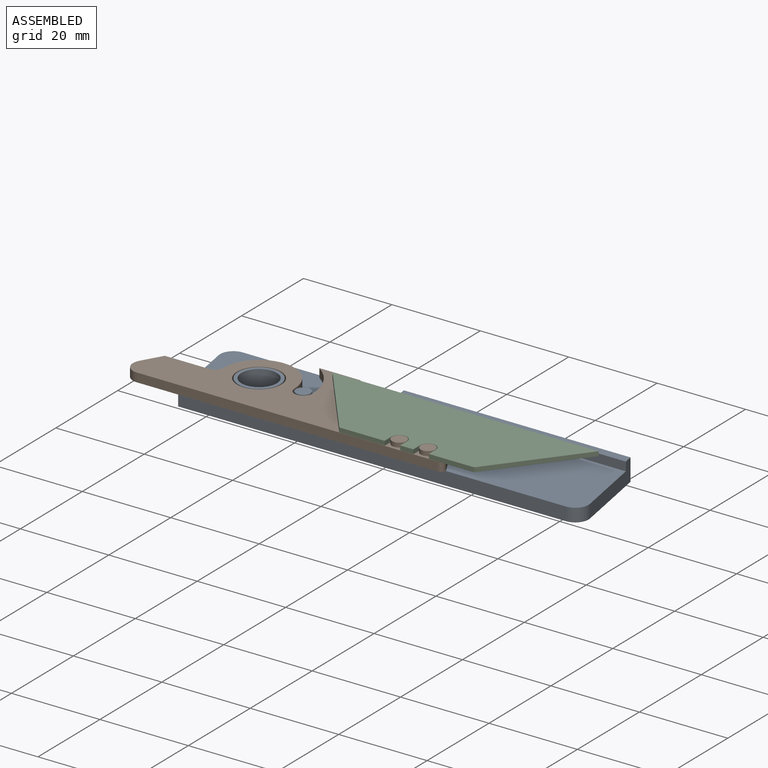
[diagram: assembled view]
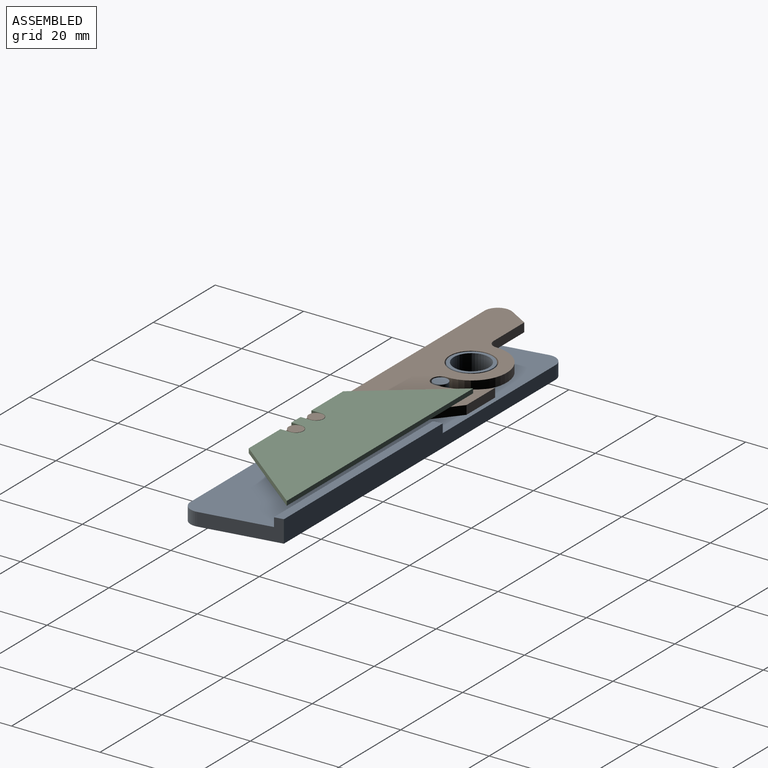
[diagram: assembled view, second angle]
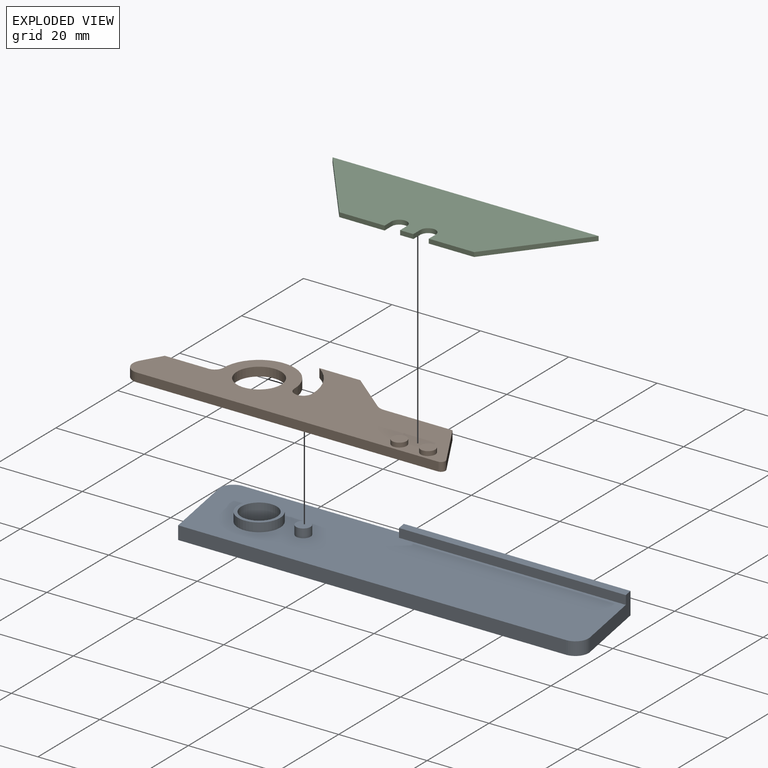
[diagram: exploded view]
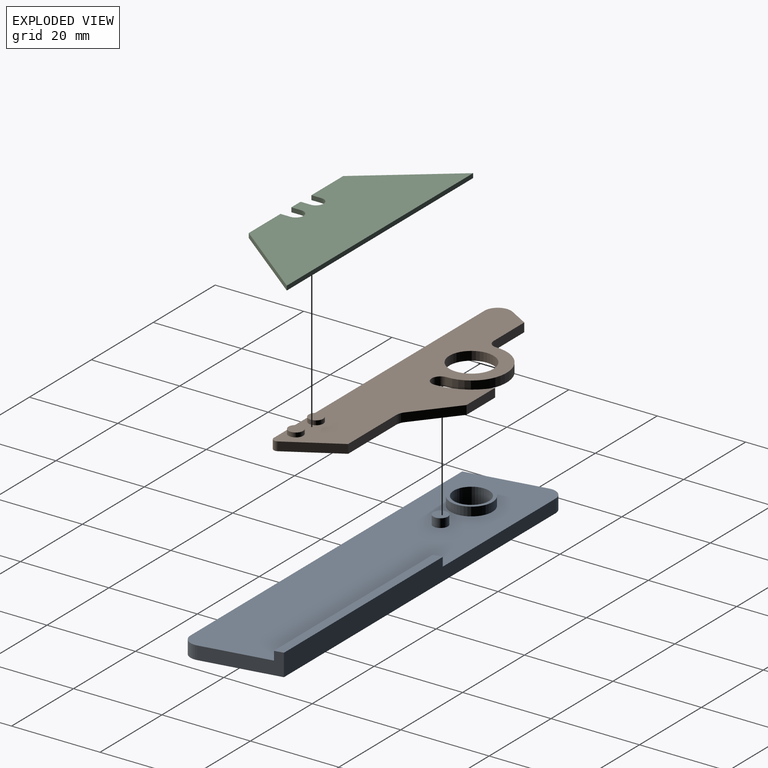
[diagram: exploded view, second angle]
ASSEMBLY  parts=3 mates=2
PART A: 16 faces, bbox 93.8x21x5 mm
  f0: plane 93.85x21mm, normal (0,0,1), area 1729.5mm2, adj f1,f2,f3,f4,f6,f7,f10,f12
  f1: plane 17.48x3.08mm, normal (-0.98,-0.17,0), area 53.2mm2, adj f0,f2,f5,f15
  f2: plane 87.72x3mm, normal (0,-1,0), area 263.2mm2, adj f0,f1,f5,f14
  f3: plane 17.48x5mm, normal (0.98,0.17,0), area 57.3mm2, adj f0,f4,f5,f7,f8,f14
  f4: plane 87.72x5mm, normal (0,1,0), area 365.8mm2, adj f0,f3,f5,f6,f8,f15
  f5: plane 93.85x21mm, normal (0,0,-1), area 1861.2mm2, adj f1,f2,f3,f4,f9,f14,f15
  f6: plane 2x2mm, normal (-0.98,-0.17,0), area 4.1mm2, adj f0,f4,f7,f8
  f7: plane 51.3x2mm, normal (0,-1,0), area 102.6mm2, adj f0,f3,f6,f8
  f8: plane 51.65x2mm, normal (0,0,1), area 102.6mm2, adj f3,f4,f6,f7
  f9: cylinder r=4mm len=8mm, axis (0,0,-1), area 125.7mm2, adj f5,f11
  f10: cylinder r=4.75mm len=9.5mm, axis (0,0,-1), area 59.7mm2, adj f0,f11
  f11: plane 9.5x9.5mm, normal (0,0,1), area 20.6mm2, adj f9,f10
  f12: cylinder r=1.65mm len=3.3mm, axis (0,0,-1), area 20.7mm2, adj f0,f13
  f13: plane 3.3x3.3mm, normal (0,0,1), area 8.6mm2, adj f12
  f14: cylinder r=3mm len=3.52mm, axis (0,0,1), area 15.7mm2, adj f0,f2,f3,f5
  f15: cylinder r=3mm len=3.52mm, axis (0,0,1), area 15.7mm2, adj f0,f1,f4,f5
PART B: 21 faces, bbox 72.1x21x3 mm
  f0: cylinder r=3mm len=2mm, axis (0,0,-1), area 4.1mm2, adj f1,f14,f15,f16
  f1: plane 9.17x7.48mm, normal (-0.63,-0.77,0), area 23.7mm2, adj f0,f2,f15,f16
  f2: plane 9.24x2mm, normal (0,-1,0), area 18.5mm2, adj f1,f3,f15,f16
  f3: cylinder r=12mm len=10mm, axis (0,0,-1), area 23.6mm2, adj f2,f4,f15,f16
  f4: cylinder r=2mm len=4mm, axis (0,0,-1), area 12.6mm2, adj f3,f5,f15,f16
  f5: cylinder r=8mm len=16mm, axis (0,0,-1), area 50.3mm2, adj f4,f6,f15,f16
  f6: cylinder r=2mm len=2mm, axis (0,0,-1), area 6.3mm2, adj f5,f7,f15,f16
  f7: plane 9.93x2mm, normal (0,-1,0), area 19.9mm2, adj f6,f8,f15,f16
  f8: plane 4.5x2.6mm, normal (0.87,-0.5,0), area 10.4mm2, adj f7,f9,f15,f16
  f9: cylinder r=3mm len=4.5mm, axis (0,0,-1), area 12.6mm2, adj f8,f10,f15,f16
  f10: plane 68.07x2mm, normal (0,1,0), area 136.1mm2, adj f9,f11,f15,f16
  f11: cylinder r=1mm len=2mm, axis (0,0,-1), area 4.2mm2, adj f10,f12,f15,f16
  f12: plane 11.34x6.55mm, normal (-0.87,-0.5,0), area 26.2mm2, adj f11,f14,f15,f16
  f13: cylinder r=5mm len=10mm, axis (0,0,-1), area 62.8mm2, adj f15,f16
  f14: plane 15.52x2mm, normal (0,-1,0), area 31mm2, adj f0,f12,f15,f16
  f15: plane 72.07x21mm, normal (0,0,1), area 870.5mm2, adj f0,f1,f2,f3,f4,f5,f6,f7
  f16: plane 72.07x21mm, normal (0,0,-1), area 887.6mm2, adj f0,f1,f2,f3,f4,f5,f6,f7
  f17: cylinder r=1.65mm len=3.3mm, axis (0,0,-1), area 10.4mm2, adj f15,f18
  f18: plane 3.3x3.3mm, normal (0,0,1), area 8.6mm2, adj f17
  f19: cylinder r=1.65mm len=3.3mm, axis (0,0,-1), area 10.4mm2, adj f15,f20
  f20: plane 3.3x3.3mm, normal (0,0,1), area 8.6mm2, adj f19
PART C: 14 faces, bbox 60.2x19x1 mm
  f0: plane 3x1mm, normal (0,1,0), area 3mm2, adj f1,f11,f12,f13
  f1: plane 2.25x1mm, normal (-1,0,0), area 2.2mm2, adj f0,f2,f12,f13
  f2: cylinder r=1.75mm len=3.5mm, axis (0,0,-1), area 5.5mm2, adj f1,f3,f12,f13
  f3: plane 2.25x1mm, normal (1,0,0), area 2.2mm2, adj f2,f4,f12,f13
  f4: plane 10.26x1mm, normal (0,1,0), area 10.3mm2, adj f3,f5,f12,f13
  f5: plane 19x14.84mm, normal (-0.79,0.62,0), area 24.1mm2, adj f4,f6,f12,f13
  f6: plane 60.2x1mm, normal (0,-1,0), area 60.2mm2, adj f5,f7,f12,f13
  f7: plane 19x14.84mm, normal (0.79,0.62,0), area 24.1mm2, adj f6,f8,f12,f13
  f8: plane 10.26x1mm, normal (0,1,0), area 10.3mm2, adj f7,f9,f12,f13
  f9: plane 2.25x1mm, normal (-1,0,0), area 2.2mm2, adj f8,f10,f12,f13
  f10: cylinder r=1.75mm len=3.5mm, axis (0,0,-1), area 5.5mm2, adj f9,f11,f12,f13
  f11: plane 2.25x1mm, normal (1,0,0), area 2.2mm2, adj f0,f10,f12,f13
  f12: plane 60.2x19mm, normal (0,0,1), area 836.4mm2, adj f0,f1,f2,f3,f4,f5,f6,f7
  f13: plane 60.2x19mm, normal (0,0,-1), area 836.4mm2, adj f0,f1,f2,f3,f4,f5,f6,f7
PLACE A rot(axis=(0,0,1),0deg) t=(0,0,0)mm fixed
PLACE B rot(axis=(0,0,-1),180deg) t=(0,0,3)mm
PLACE C rot(axis=(0,0,-1),180deg) t=(41.05,-1.45,5)mm
MATE fastened C.f2 <-> B.f17  axis (0,0,-1) through (44.3,-8.7,5)mm
MATE revolute B.f13 <-> A.f10  axis (0,0,-1) through (0,0,3)mm
